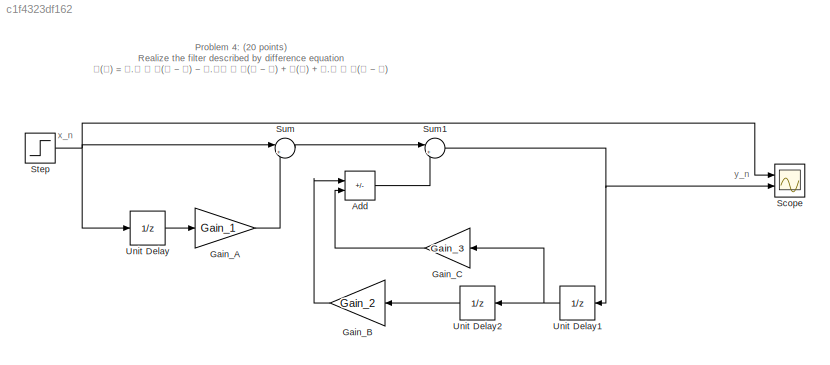
MODEL slx_c1f4323df162
KIND model
CONFIG AbsTol = auto
CONFIG EnableMultiTasking = off
CONFIG FixedStep = auto
CONFIG MaxStep = auto
CONFIG MinStep = auto
CONFIG RelTol = 1e-3
CONFIG SampleTimeConstraint = Unconstrained
CONFIG Solver = FixedStepDiscrete
CONFIG SolverName = FixedStepDiscrete
CONFIG StartTime = 0.0
CONFIG StopTime = 10.0
WORKSPACE source: mxarray member
WORKSPACE Gain_1 = 0.4
WORKSPACE Gain_2 = 0.5
WORKSPACE Gain_3 = 0.25
BLOCK [Sum] Add
  IconShape = rectangular
  Inputs = -+
  Ports = [2, 1]
BLOCK [Gain] Gain_A
  Gain = Gain_1
BLOCK [Gain] Gain_B
  Gain = Gain_2
  NameLocation = top
BLOCK [Gain] Gain_C
  Gain = Gain_3
  NameLocation = top
BLOCK [Scope] Scope
  Floating = off
  NumInputPorts = 2
  Ports = [2]
  ScopeSpecificationString = Simulink.scopes.TimeScopeBlockCfg('CurrentConfiguration', extmgr.ConfigurationSet(extmgr.Configuration('Core','General UI',true),extmgr.Configuration('Core','Source UI',true),extmgr.Configuration('Sources','WiredSimulink',true),extmgr.Configuration('Visuals','Time Domain',true,'SerializedDisplays',{struct('MinYLimReal','-0.20625','MaxYLimReal','1.85625','YLabelReal','','MinYLimMag','0.00000','MaxY...<+1360ch>
BLOCK [Step] Step
  SampleTime = 0
BLOCK [Sum] Sum
  Inputs = |++
  Ports = [2, 1]
BLOCK [Sum] Sum1
  Inputs = |++
  Ports = [2, 1]
BLOCK [UnitDelay] Unit Delay
  HasFrameUpgradeWarning = on
  SampleTime = -1
BLOCK [UnitDelay] Unit Delay1
  HasFrameUpgradeWarning = on
  NameLocation = top
  SampleTime = -1
BLOCK [UnitDelay] Unit Delay2
  HasFrameUpgradeWarning = on
  NameLocation = top
  SampleTime = -1
ANNOTATION (root): Problem 4: (20 points) Realize the filter described by difference equation 𝐲(𝐧) = 𝟎.𝟓 ∗ 𝐲(𝐧 − 𝟏) − 𝟎.𝟐𝟓 ∗ 𝐲(𝐧 − 𝟐) + 𝐱(𝐧) + 𝟎.𝟒 ∗ 𝐱(𝐧 − 𝟏)
ANNOTATION (root): x_n
ANNOTATION (root): y_n
LINE Add:1 -> Sum1:2
LINE Gain_A:1 -> Sum:2
LINE Gain_B:1 -> Add:1
LINE Gain_C:1 -> Add:2
NET Step:1 -> Scope:1, Sum:1, Unit Delay:1
NET Sum1:1 -> Scope:2, Unit Delay1:1
LINE Sum:1 -> Sum1:1
NET Unit Delay1:1 -> Gain_C:1, Unit Delay2:1
LINE Unit Delay2:1 -> Gain_B:1
LINE Unit Delay:1 -> Gain_A:1
note: NET lines group one-source signal fan-out (src -> all destinations, sorted); 1:1 wires keep LINE
